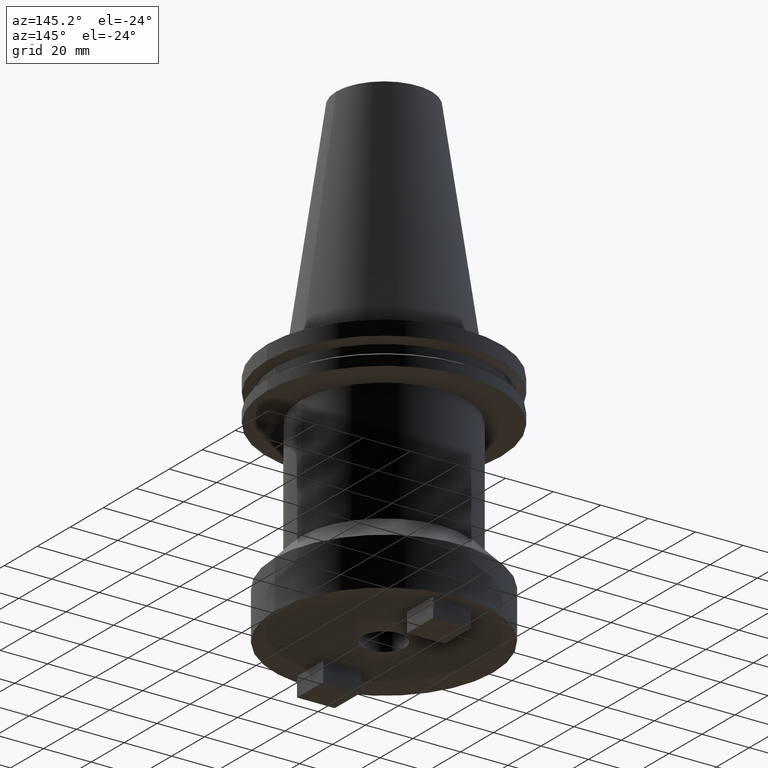
[diagram: clean part render]
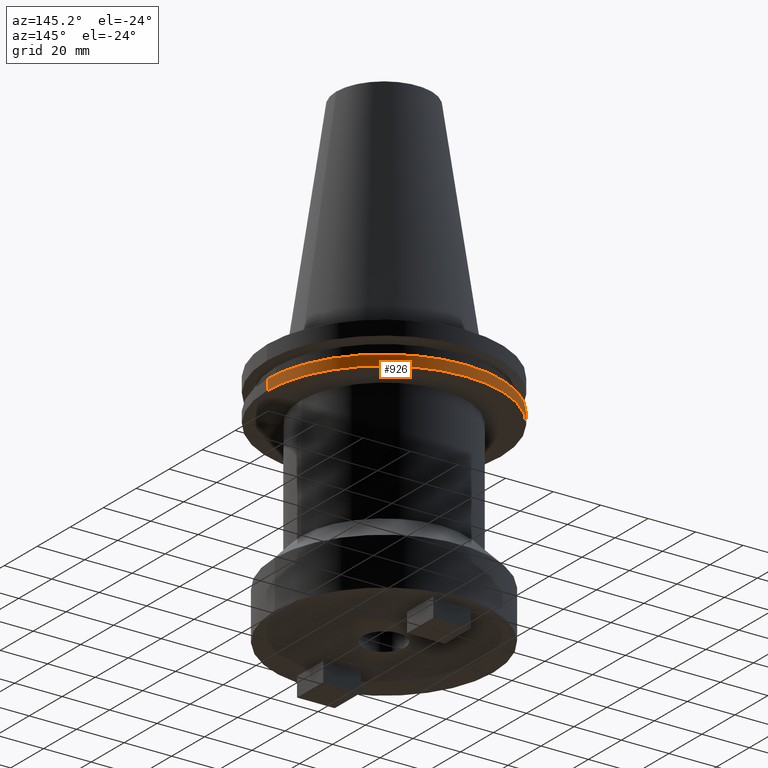
[diagram: same view with one face highlighted and labeled with its STEP entity id]
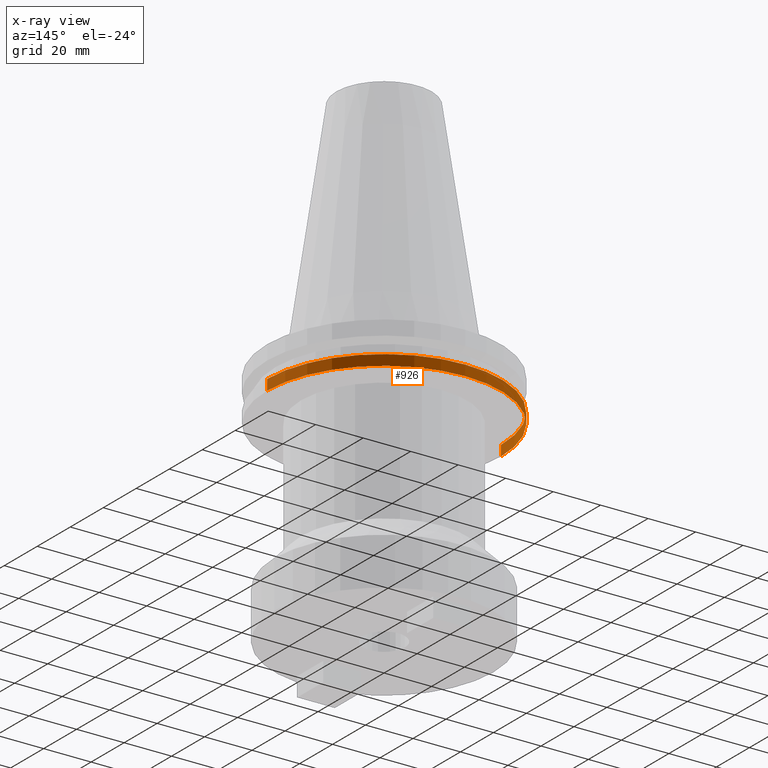
[diagram: x-ray of the same camera — body ghosted, the highlighted face saturated]
A machine part, auxiliary view. The second image highlights one B-rep face of the part: STEP entity #926.
The next image is the same camera in x-ray: the body ghosted, the highlighted face saturated — about 0% of this face is hidden behind the body in this view.
In plain terms, the highlighted cylindrical surface (partial cylindrical patch) has radius 49.215 mm, axis along (-0, -0, 1).
Its self-contained STEP definition (entity closure, byte-faithful):
#57 = FACE_OUTER_BOUND ( 'NONE', #448, .T. ) ;
#60 = EDGE_CURVE ( 'NONE', #432, #253, #624, .T. ) ;
#108 = DIRECTION ( 'NONE',  ( -0.000000000000000000, -0.000000000000000000, 1.000000000000000000 ) ) ;
#127 = AXIS2_PLACEMENT_3D ( 'NONE', #368, #1043, #282 ) ;
#143 = DIRECTION ( 'NONE',  ( -0.000000000000000000, -0.000000000000000000, 1.000000000000000000 ) ) ;
#151 = ORIENTED_EDGE ( 'NONE', *, *, #357, .F. ) ;
#191 = CARTESIAN_POINT ( 'NONE',  ( 0.000000000000000000, 0.000000000000000000, -19.04999999999999716 ) ) ;
#196 = VECTOR ( 'NONE', #936, 1000.000000000000000 ) ;
#198 = CARTESIAN_POINT ( 'NONE',  ( 49.21499999999998920, 0.000000000000000000, -19.04999999999999716 ) ) ;
#253 = VERTEX_POINT ( 'NONE', #555 ) ;
#282 = DIRECTION ( 'NONE',  ( 1.000000000000000000, 0.000000000000000000, 0.000000000000000000 ) ) ;
#290 = DIRECTION ( 'NONE',  ( -0.000000000000000000, -0.000000000000000000, 1.000000000000000000 ) ) ;
#357 = EDGE_CURVE ( 'NONE', #500, #506, #516, .T. ) ;
#368 = CARTESIAN_POINT ( 'NONE',  ( 0.000000000000000000, 0.000000000000000000, -14.65761014474876944 ) ) ;
#387 = CIRCLE ( 'NONE', #127, 49.21499999999998920 ) ;
#393 = VECTOR ( 'NONE', #108, 1000.000000000000000 ) ;
#399 = CYLINDRICAL_SURFACE ( 'NONE', #825, 49.21499999999998920 ) ;
#420 = CARTESIAN_POINT ( 'NONE',  ( 49.21499999999998920, 0.000000000000000000, 101.5999999999999943 ) ) ;
#432 = VERTEX_POINT ( 'NONE', #920 ) ;
#448 = EDGE_LOOP ( 'NONE', ( #843, #473, #586, #151 ) ) ;
#451 = DIRECTION ( 'NONE',  ( 1.000000000000000000, 0.000000000000000000, 0.000000000000000000 ) ) ;
#473 = ORIENTED_EDGE ( 'NONE', *, *, #60, .T. ) ;
#479 = EDGE_CURVE ( 'NONE', #500, #432, #574, .T. ) ;
#500 = VERTEX_POINT ( 'NONE', #198 ) ;
#506 = VERTEX_POINT ( 'NONE', #522 ) ;
#516 = LINE ( 'NONE', #420, #196 ) ;
#522 = CARTESIAN_POINT ( 'NONE',  ( 49.21499999999998920, 0.000000000000000000, -14.65761014474876944 ) ) ;
#543 = CARTESIAN_POINT ( 'NONE',  ( -49.21499999999998920, 6.027099222003697037E-15, 101.5999999999999943 ) ) ;
#555 = CARTESIAN_POINT ( 'NONE',  ( -49.21499999999998920, 6.027099222003697037E-15, -14.65761014474876944 ) ) ;
#560 = EDGE_CURVE ( 'NONE', #506, #253, #387, .T. ) ;
#574 = CIRCLE ( 'NONE', #665, 49.21499999999998920 ) ;
#586 = ORIENTED_EDGE ( 'NONE', *, *, #560, .F. ) ;
#624 = LINE ( 'NONE', #543, #393 ) ;
#665 = AXIS2_PLACEMENT_3D ( 'NONE', #191, #290, #451 ) ;
#825 = AXIS2_PLACEMENT_3D ( 'NONE', #1078, #143, #1070 ) ;
#843 = ORIENTED_EDGE ( 'NONE', *, *, #479, .T. ) ;
#920 = CARTESIAN_POINT ( 'NONE',  ( -49.21499999999998920, 6.027099222003697037E-15, -19.04999999999999716 ) ) ;
#926 = ADVANCED_FACE ( 'NONE', ( #57 ), #399, .T. ) ;
#936 = DIRECTION ( 'NONE',  ( -0.000000000000000000, -0.000000000000000000, 1.000000000000000000 ) ) ;
#1043 = DIRECTION ( 'NONE',  ( -0.000000000000000000, -0.000000000000000000, 1.000000000000000000 ) ) ;
#1070 = DIRECTION ( 'NONE',  ( 1.000000000000000000, 0.000000000000000000, 0.000000000000000000 ) ) ;
#1078 = CARTESIAN_POINT ( 'NONE',  ( 0.000000000000000000, 0.000000000000000000, 101.5999999999999943 ) ) ;